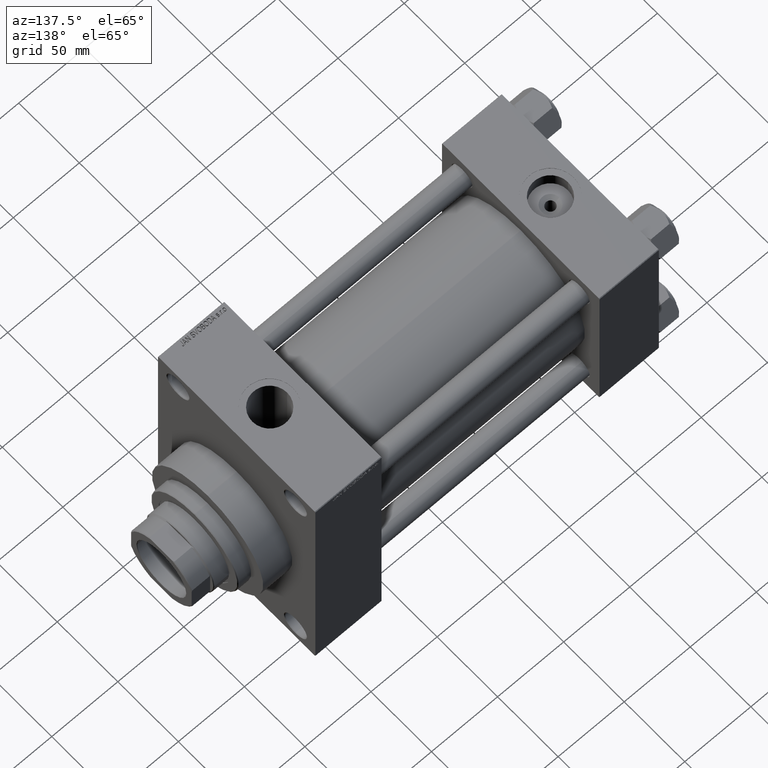
[diagram: clean part render]
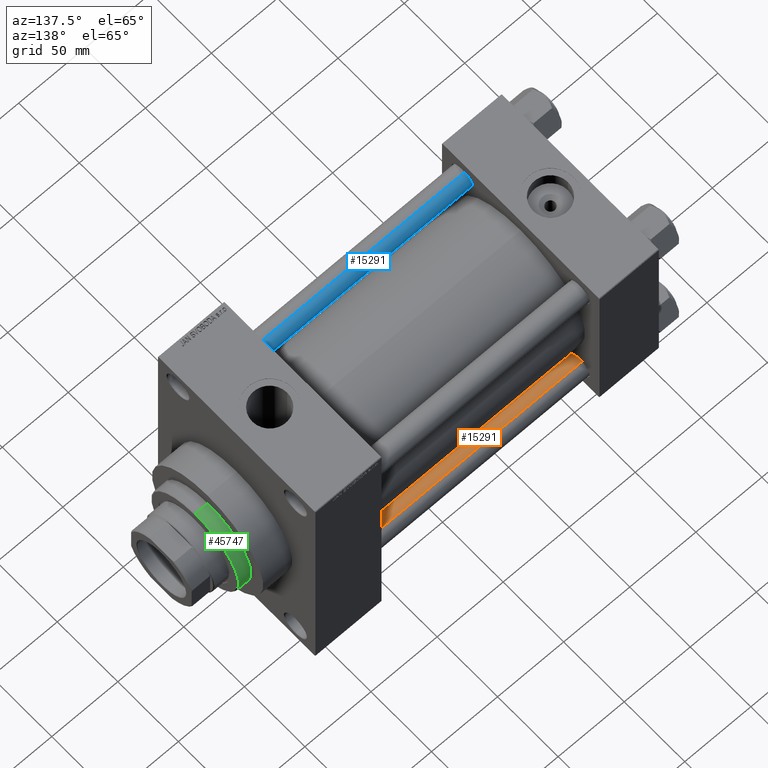
[diagram: same view with three faces highlighted in distinct colors, each labeled with its STEP entity id]
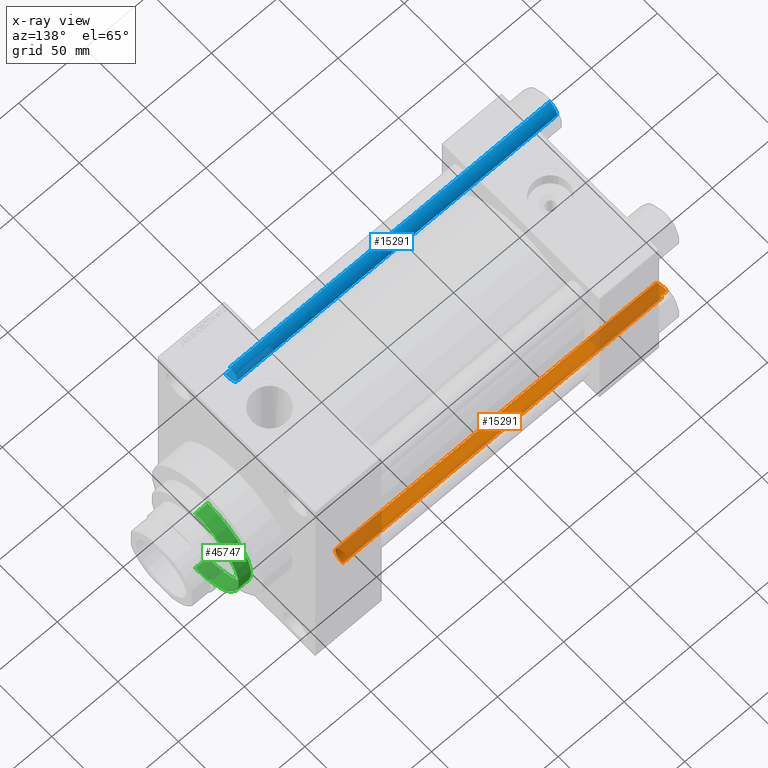
[diagram: x-ray of the same camera — body ghosted, the three highlighted faces saturated]
A machine part, auxiliary view with three faces highlighted in distinct colors.
The next image is the same camera in x-ray (body ghosted, the three faces saturated) — at least one of them is partly hidden behind the body in this view.
Their STEP definitions:

[orange] entity #15291 — the highlighted cylindrical surface (edge-blend (fillet) strip) has radius 8 mm, axis along (1, -0, 0).
#3249 = ORIENTED_EDGE ( 'NONE', *, *, #16995, .F. ) ;
#4738 = ORIENTED_EDGE ( 'NONE', *, *, #24929, .T. ) ;
#5540 = DIRECTION ( 'NONE',  ( 0.000000000000000000, 0.000000000000000000, -1.000000000000000000 ) ) ;
#5716 = CYLINDRICAL_SURFACE ( 'NONE', #18171, 8.000000000000000000 ) ;
#6123 = EDGE_CURVE ( 'NONE', #11558, #10812, #18520, .T. ) ;
#8624 = DIRECTION ( 'NONE',  ( -1.000000000000000000, 0.000000000000000000, 0.000000000000000000 ) ) ;
#10329 = VERTEX_POINT ( 'NONE', #45714 ) ;
#10812 = VERTEX_POINT ( 'NONE', #32086 ) ;
#11558 = VERTEX_POINT ( 'NONE', #18131 ) ;
#13197 = ORIENTED_EDGE ( 'NONE', *, *, #6123, .T. ) ;
#14770 = CARTESIAN_POINT ( 'NONE',  ( 8.000000000000000000, 9.797174393178825657E-16, 243.0000000000000000 ) ) ;
#15291 = ADVANCED_FACE ( 'NONE', ( #27455 ), #5716, .T. ) ;
#15641 = VERTEX_POINT ( 'NONE', #46201 ) ;
#16995 = EDGE_CURVE ( 'NONE', #10329, #15641, #33115, .T. ) ;
#18131 = CARTESIAN_POINT ( 'NONE',  ( -8.000000000000000000, 0.000000000000000000, 242.4999999999999147 ) ) ;
#18171 = AXIS2_PLACEMENT_3D ( 'NONE', #41926, #26321, #8624 ) ;
#18520 = LINE ( 'NONE', #37098, #39414 ) ;
#18632 = EDGE_LOOP ( 'NONE', ( #3249, #4738, #13197, #20670 ) ) ;
#20670 = ORIENTED_EDGE ( 'NONE', *, *, #45596, .T. ) ;
#21637 = CARTESIAN_POINT ( 'NONE',  ( 0.000000000000000000, 0.000000000000000000, 0.5000000000000004441 ) ) ;
#23562 = AXIS2_PLACEMENT_3D ( 'NONE', #21637, #36353, #36595 ) ;
#24929 = EDGE_CURVE ( 'NONE', #10329, #11558, #30706, .T. ) ;
#26321 = DIRECTION ( 'NONE',  ( -0.000000000000000000, -0.000000000000000000, -1.000000000000000000 ) ) ;
#27455 = FACE_OUTER_BOUND ( 'NONE', #18632, .T. ) ;
#28240 = CARTESIAN_POINT ( 'NONE',  ( 0.000000000000000000, 0.000000000000000000, 242.4999999999999147 ) ) ;
#28919 = VECTOR ( 'NONE', #39876, 1000.000000000000000 ) ;
#30706 = CIRCLE ( 'NONE', #46100, 8.000000000000000000 ) ;
#32086 = CARTESIAN_POINT ( 'NONE',  ( -8.000000000000000000, 0.000000000000000000, 0.5000000000000004441 ) ) ;
#33115 = LINE ( 'NONE', #14770, #28919 ) ;
#35468 = DIRECTION ( 'NONE',  ( 1.000000000000000000, 0.000000000000000000, 0.000000000000000000 ) ) ;
#36353 = DIRECTION ( 'NONE',  ( -0.000000000000000000, -0.000000000000000000, 1.000000000000000000 ) ) ;
#36595 = DIRECTION ( 'NONE',  ( 1.000000000000000000, 0.000000000000000000, 0.000000000000000000 ) ) ;
#37098 = CARTESIAN_POINT ( 'NONE',  ( -8.000000000000000000, 0.000000000000000000, 243.0000000000000000 ) ) ;
#39414 = VECTOR ( 'NONE', #47716, 1000.000000000000000 ) ;
#39876 = DIRECTION ( 'NONE',  ( -0.000000000000000000, -0.000000000000000000, -1.000000000000000000 ) ) ;
#41926 = CARTESIAN_POINT ( 'NONE',  ( 0.000000000000000000, 0.000000000000000000, 243.0000000000000000 ) ) ;
#44342 = CIRCLE ( 'NONE', #23562, 8.000000000000000000 ) ;
#45596 = EDGE_CURVE ( 'NONE', #10812, #15641, #44342, .T. ) ;
#45714 = CARTESIAN_POINT ( 'NONE',  ( 8.000000000000000000, 9.797174393178825657E-16, 242.4999999999999147 ) ) ;
#46100 = AXIS2_PLACEMENT_3D ( 'NONE', #28240, #5540, #35468 ) ;
#46201 = CARTESIAN_POINT ( 'NONE',  ( 8.000000000000000000, 9.797174393178825657E-16, 0.5000000000000004441 ) ) ;
#47716 = DIRECTION ( 'NONE',  ( -0.000000000000000000, -0.000000000000000000, -1.000000000000000000 ) ) ;

[blue] entity #15291 — the highlighted cylindrical surface (edge-blend (fillet) strip) has radius 8 mm, axis along (1, 0, 0).
#3249 = ORIENTED_EDGE ( 'NONE', *, *, #16995, .F. ) ;
#4738 = ORIENTED_EDGE ( 'NONE', *, *, #24929, .T. ) ;
#5540 = DIRECTION ( 'NONE',  ( 0.000000000000000000, 0.000000000000000000, -1.000000000000000000 ) ) ;
#5716 = CYLINDRICAL_SURFACE ( 'NONE', #18171, 8.000000000000000000 ) ;
#6123 = EDGE_CURVE ( 'NONE', #11558, #10812, #18520, .T. ) ;
#8624 = DIRECTION ( 'NONE',  ( -1.000000000000000000, 0.000000000000000000, 0.000000000000000000 ) ) ;
#10329 = VERTEX_POINT ( 'NONE', #45714 ) ;
#10812 = VERTEX_POINT ( 'NONE', #32086 ) ;
#11558 = VERTEX_POINT ( 'NONE', #18131 ) ;
#13197 = ORIENTED_EDGE ( 'NONE', *, *, #6123, .T. ) ;
#14770 = CARTESIAN_POINT ( 'NONE',  ( 8.000000000000000000, 9.797174393178825657E-16, 243.0000000000000000 ) ) ;
#15291 = ADVANCED_FACE ( 'NONE', ( #27455 ), #5716, .T. ) ;
#15641 = VERTEX_POINT ( 'NONE', #46201 ) ;
#16995 = EDGE_CURVE ( 'NONE', #10329, #15641, #33115, .T. ) ;
#18131 = CARTESIAN_POINT ( 'NONE',  ( -8.000000000000000000, 0.000000000000000000, 242.4999999999999147 ) ) ;
#18171 = AXIS2_PLACEMENT_3D ( 'NONE', #41926, #26321, #8624 ) ;
#18520 = LINE ( 'NONE', #37098, #39414 ) ;
#18632 = EDGE_LOOP ( 'NONE', ( #3249, #4738, #13197, #20670 ) ) ;
#20670 = ORIENTED_EDGE ( 'NONE', *, *, #45596, .T. ) ;
#21637 = CARTESIAN_POINT ( 'NONE',  ( 0.000000000000000000, 0.000000000000000000, 0.5000000000000004441 ) ) ;
#23562 = AXIS2_PLACEMENT_3D ( 'NONE', #21637, #36353, #36595 ) ;
#24929 = EDGE_CURVE ( 'NONE', #10329, #11558, #30706, .T. ) ;
#26321 = DIRECTION ( 'NONE',  ( -0.000000000000000000, -0.000000000000000000, -1.000000000000000000 ) ) ;
#27455 = FACE_OUTER_BOUND ( 'NONE', #18632, .T. ) ;
#28240 = CARTESIAN_POINT ( 'NONE',  ( 0.000000000000000000, 0.000000000000000000, 242.4999999999999147 ) ) ;
#28919 = VECTOR ( 'NONE', #39876, 1000.000000000000000 ) ;
#30706 = CIRCLE ( 'NONE', #46100, 8.000000000000000000 ) ;
#32086 = CARTESIAN_POINT ( 'NONE',  ( -8.000000000000000000, 0.000000000000000000, 0.5000000000000004441 ) ) ;
#33115 = LINE ( 'NONE', #14770, #28919 ) ;
#35468 = DIRECTION ( 'NONE',  ( 1.000000000000000000, 0.000000000000000000, 0.000000000000000000 ) ) ;
#36353 = DIRECTION ( 'NONE',  ( -0.000000000000000000, -0.000000000000000000, 1.000000000000000000 ) ) ;
#36595 = DIRECTION ( 'NONE',  ( 1.000000000000000000, 0.000000000000000000, 0.000000000000000000 ) ) ;
#37098 = CARTESIAN_POINT ( 'NONE',  ( -8.000000000000000000, 0.000000000000000000, 243.0000000000000000 ) ) ;
#39414 = VECTOR ( 'NONE', #47716, 1000.000000000000000 ) ;
#39876 = DIRECTION ( 'NONE',  ( -0.000000000000000000, -0.000000000000000000, -1.000000000000000000 ) ) ;
#41926 = CARTESIAN_POINT ( 'NONE',  ( 0.000000000000000000, 0.000000000000000000, 243.0000000000000000 ) ) ;
#44342 = CIRCLE ( 'NONE', #23562, 8.000000000000000000 ) ;
#45596 = EDGE_CURVE ( 'NONE', #10812, #15641, #44342, .T. ) ;
#45714 = CARTESIAN_POINT ( 'NONE',  ( 8.000000000000000000, 9.797174393178825657E-16, 242.4999999999999147 ) ) ;
#46100 = AXIS2_PLACEMENT_3D ( 'NONE', #28240, #5540, #35468 ) ;
#46201 = CARTESIAN_POINT ( 'NONE',  ( 8.000000000000000000, 9.797174393178825657E-16, 0.5000000000000004441 ) ) ;
#47716 = DIRECTION ( 'NONE',  ( -0.000000000000000000, -0.000000000000000000, -1.000000000000000000 ) ) ;

[green] entity #45747 — the highlighted cylindrical surface (partial cylindrical patch) has radius 36 mm, axis along (-1, 0, 0).
#1321 = CYLINDRICAL_SURFACE ( 'NONE', #21245, 36.00000000000000000 ) ;
#2256 = ORIENTED_EDGE ( 'NONE', *, *, #16173, .T. ) ;
#2492 = CARTESIAN_POINT ( 'NONE',  ( 36.00000000000000000, 4.408728476930470856E-15, 43.25999999999999801 ) ) ;
#3676 = VERTEX_POINT ( 'NONE', #38173 ) ;
#5307 = CARTESIAN_POINT ( 'NONE',  ( 0.000000000000000000, 0.000000000000000000, 52.76000000000001933 ) ) ;
#8182 = CARTESIAN_POINT ( 'NONE',  ( 0.000000000000000000, 0.000000000000000000, 43.25999999999999801 ) ) ;
#8702 = DIRECTION ( 'NONE',  ( 0.000000000000000000, 0.000000000000000000, -1.000000000000000000 ) ) ;
#10204 = VERTEX_POINT ( 'NONE', #34746 ) ;
#10429 = VERTEX_POINT ( 'NONE', #2492 ) ;
#13701 = DIRECTION ( 'NONE',  ( -0.000000000000000000, -0.000000000000000000, -1.000000000000000000 ) ) ;
#15144 = VECTOR ( 'NONE', #13701, 1000.000000000000000 ) ;
#16155 = EDGE_LOOP ( 'NONE', ( #34971, #32113, #2256, #31292 ) ) ;
#16173 = EDGE_CURVE ( 'NONE', #39944, #3676, #46762, .T. ) ;
#17380 = EDGE_CURVE ( 'NONE', #3676, #10429, #45110, .T. ) ;
#19612 = CIRCLE ( 'NONE', #27301, 36.00000000000000000 ) ;
#20397 = CARTESIAN_POINT ( 'NONE',  ( 0.000000000000000000, 0.000000000000000000, 53.26000000000000512 ) ) ;
#20613 = VECTOR ( 'NONE', #47373, 1000.000000000000000 ) ;
#21245 = AXIS2_PLACEMENT_3D ( 'NONE', #20397, #23554, #42346 ) ;
#23189 = EDGE_CURVE ( 'NONE', #10204, #10429, #43043, .T. ) ;
#23554 = DIRECTION ( 'NONE',  ( -0.000000000000000000, -0.000000000000000000, -1.000000000000000000 ) ) ;
#24028 = FACE_OUTER_BOUND ( 'NONE', #16155, .T. ) ;
#26286 = DIRECTION ( 'NONE',  ( 1.000000000000000000, 0.000000000000000000, 0.000000000000000000 ) ) ;
#27301 = AXIS2_PLACEMENT_3D ( 'NONE', #5307, #8702, #31147 ) ;
#31047 = DIRECTION ( 'NONE',  ( 0.000000000000000000, 0.000000000000000000, 1.000000000000000000 ) ) ;
#31147 = DIRECTION ( 'NONE',  ( 1.000000000000000000, 0.000000000000000000, 0.000000000000000000 ) ) ;
#31292 = ORIENTED_EDGE ( 'NONE', *, *, #17380, .T. ) ;
#32054 = CARTESIAN_POINT ( 'NONE',  ( -36.00000000000000000, 0.000000000000000000, 53.26000000000000512 ) ) ;
#32113 = ORIENTED_EDGE ( 'NONE', *, *, #46347, .T. ) ;
#32963 = CARTESIAN_POINT ( 'NONE',  ( -36.00000000000000000, 0.000000000000000000, 52.76000000000001933 ) ) ;
#34746 = CARTESIAN_POINT ( 'NONE',  ( 36.00000000000000000, 4.408728476930470856E-15, 52.76000000000001933 ) ) ;
#34971 = ORIENTED_EDGE ( 'NONE', *, *, #23189, .F. ) ;
#35091 = AXIS2_PLACEMENT_3D ( 'NONE', #8182, #31047, #26286 ) ;
#35813 = CARTESIAN_POINT ( 'NONE',  ( 36.00000000000000000, 4.408728476930470856E-15, 53.26000000000000512 ) ) ;
#38173 = CARTESIAN_POINT ( 'NONE',  ( -36.00000000000000000, 0.000000000000000000, 43.25999999999999801 ) ) ;
#39944 = VERTEX_POINT ( 'NONE', #32963 ) ;
#42346 = DIRECTION ( 'NONE',  ( -1.000000000000000000, 0.000000000000000000, 0.000000000000000000 ) ) ;
#43043 = LINE ( 'NONE', #35813, #20613 ) ;
#45110 = CIRCLE ( 'NONE', #35091, 36.00000000000000000 ) ;
#45747 = ADVANCED_FACE ( 'NONE', ( #24028 ), #1321, .T. ) ;
#46347 = EDGE_CURVE ( 'NONE', #10204, #39944, #19612, .T. ) ;
#46762 = LINE ( 'NONE', #32054, #15144 ) ;
#47373 = DIRECTION ( 'NONE',  ( -0.000000000000000000, -0.000000000000000000, -1.000000000000000000 ) ) ;